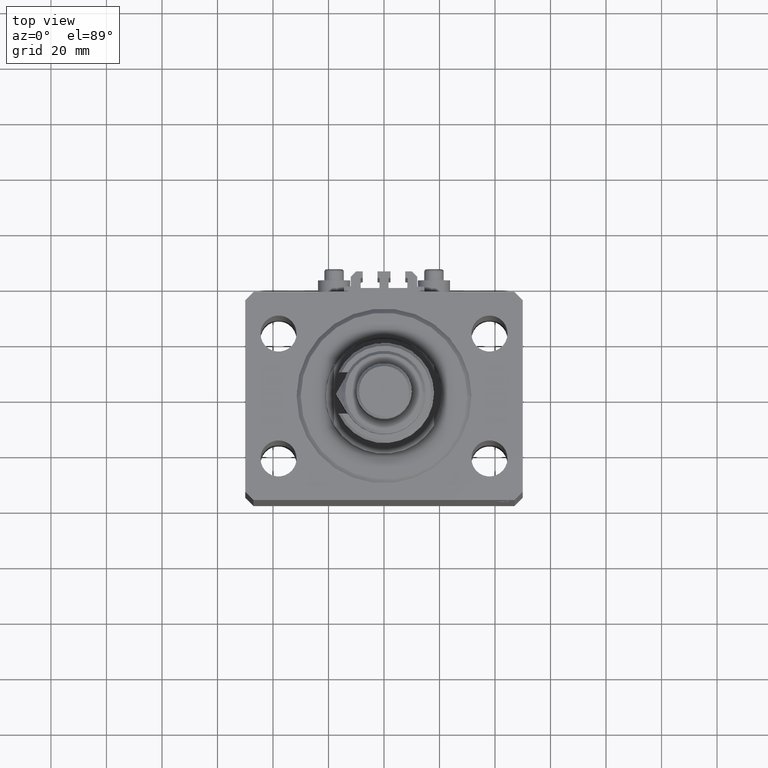
[diagram: clean part render]
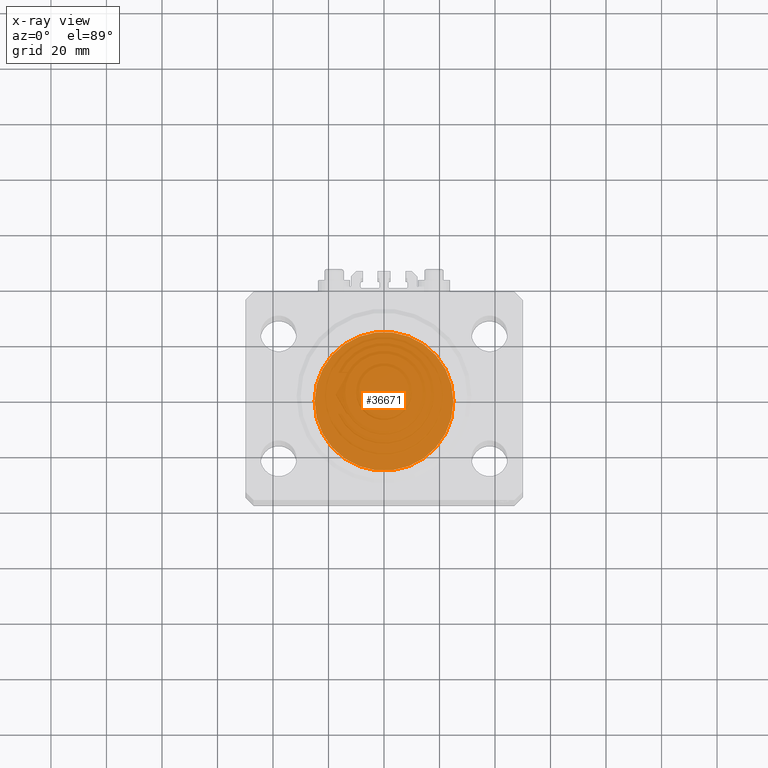
[diagram: x-ray — body ghosted, one internal face saturated and labeled with its STEP entity id]
A machine part, top view, then the same camera in x-ray: the body is ghosted and one INTERNAL B-rep face — a face not visible from any outside direction — is saturated and labeled: STEP entity #36671.
In plain terms, the highlighted planar face has unit normal (0, 0, 1).
Its self-contained STEP definition (entity closure, byte-faithful):
#757 = AXIS2_PLACEMENT_3D ( 'NONE', #35641, #47293, #7951 ) ;
#3869 = EDGE_LOOP ( 'NONE', ( #18728, #42370 ) ) ;
#5594 = VERTEX_POINT ( 'NONE', #11141 ) ;
#5623 = CIRCLE ( 'NONE', #757, 25.00000000000000000 ) ;
#7951 = DIRECTION ( 'NONE',  ( 1.000000000000000000, 0.000000000000000000, 0.000000000000000000 ) ) ;
#9641 = DIRECTION ( 'NONE',  ( 0.000000000000000000, 0.000000000000000000, 1.000000000000000000 ) ) ;
#10261 = CIRCLE ( 'NONE', #36243, 25.00000000000000000 ) ;
#11141 = CARTESIAN_POINT ( 'NONE',  ( -25.00000000000000000, 0.000000000000000000, 0.000000000000000000 ) ) ;
#13443 = FACE_OUTER_BOUND ( 'NONE', #3869, .T. ) ;
#17743 = AXIS2_PLACEMENT_3D ( 'NONE', #44432, #9641, #34762 ) ;
#18728 = ORIENTED_EDGE ( 'NONE', *, *, #31412, .F. ) ;
#28940 = PLANE ( 'NONE',  #17743 ) ;
#31412 = EDGE_CURVE ( 'NONE', #5594, #40569, #10261, .T. ) ;
#31873 = CARTESIAN_POINT ( 'NONE',  ( 0.000000000000000000, 0.000000000000000000, 0.000000000000000000 ) ) ;
#34762 = DIRECTION ( 'NONE',  ( 1.000000000000000000, 0.000000000000000000, -0.000000000000000000 ) ) ;
#35641 = CARTESIAN_POINT ( 'NONE',  ( 0.000000000000000000, 0.000000000000000000, 0.000000000000000000 ) ) ;
#36243 = AXIS2_PLACEMENT_3D ( 'NONE', #31873, #39755, #47086 ) ;
#36671 = ADVANCED_FACE ( 'NONE', ( #13443 ), #28940, .F. ) ;
#39755 = DIRECTION ( 'NONE',  ( 0.000000000000000000, 0.000000000000000000, 1.000000000000000000 ) ) ;
#40569 = VERTEX_POINT ( 'NONE', #43263 ) ;
#41485 = EDGE_CURVE ( 'NONE', #40569, #5594, #5623, .T. ) ;
#42370 = ORIENTED_EDGE ( 'NONE', *, *, #41485, .F. ) ;
#43263 = CARTESIAN_POINT ( 'NONE',  ( 25.00000000000000000, 3.061616997868383043E-15, 0.000000000000000000 ) ) ;
#44432 = CARTESIAN_POINT ( 'NONE',  ( 0.000000000000000000, 0.000000000000000000, 0.000000000000000000 ) ) ;
#47086 = DIRECTION ( 'NONE',  ( 1.000000000000000000, 0.000000000000000000, 0.000000000000000000 ) ) ;
#47293 = DIRECTION ( 'NONE',  ( 0.000000000000000000, 0.000000000000000000, 1.000000000000000000 ) ) ;